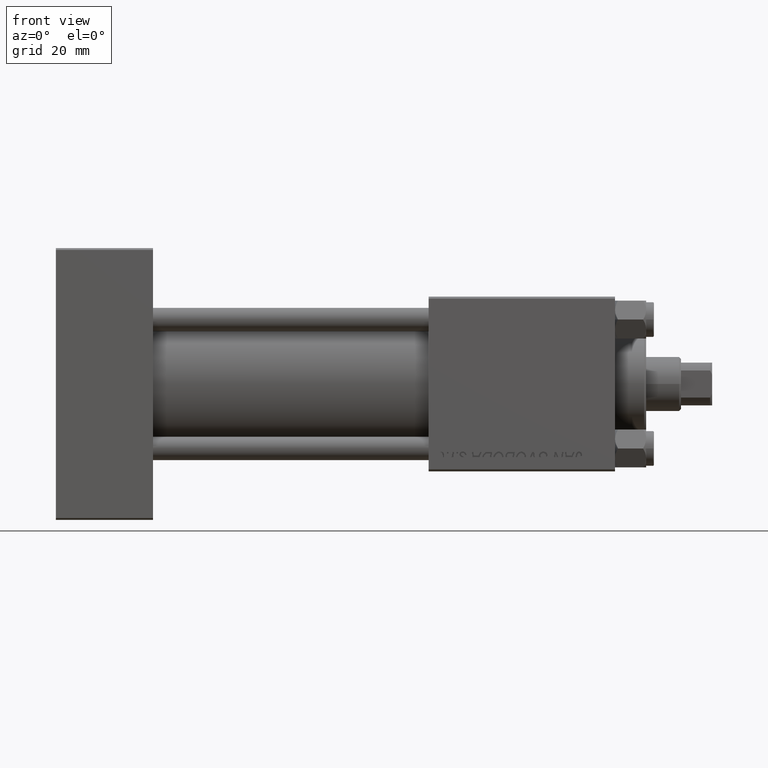
[diagram: clean part render]
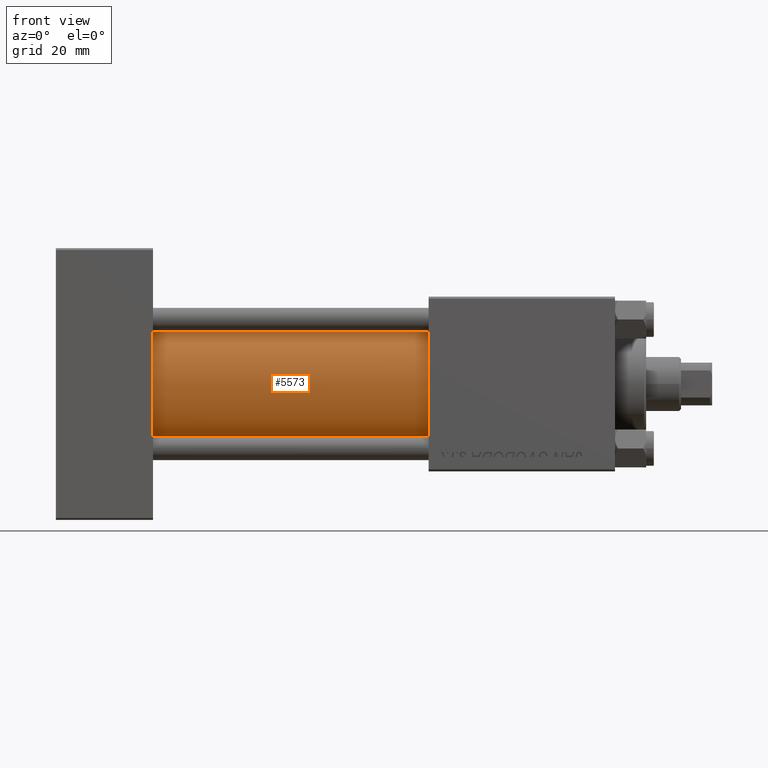
[diagram: same view with one face highlighted and labeled with its STEP entity id]
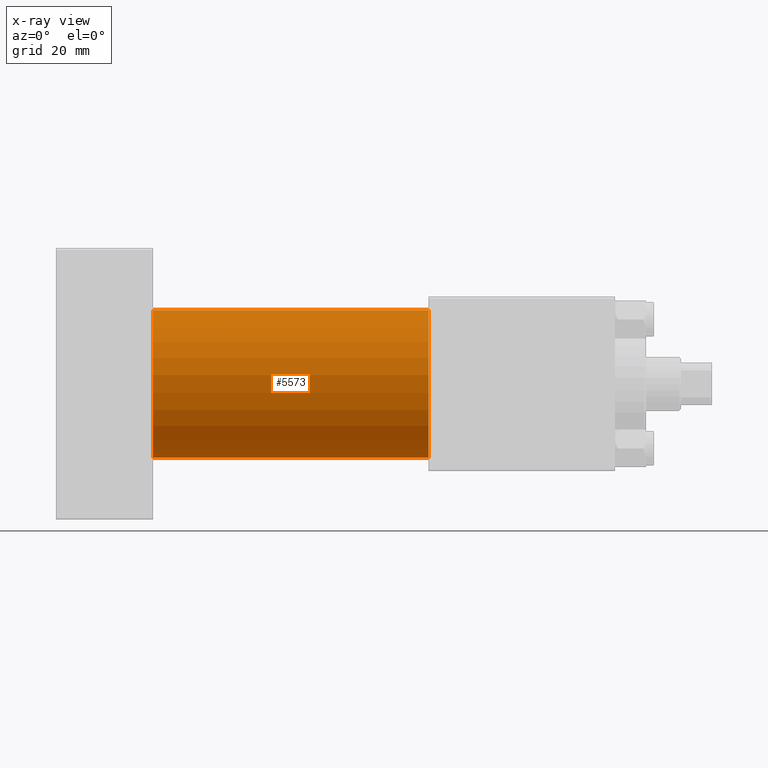
[diagram: x-ray of the same camera — body ghosted, the highlighted face saturated]
A machine part, front view. The second image highlights one B-rep face of the part: STEP entity #5573.
The next image is the same camera in x-ray: the body ghosted, the highlighted face saturated — about 0% of this face is hidden behind the body in this view.
In plain terms, the highlighted cylindrical surface (partial cylindrical patch) has radius 19 mm, axis along (-1, -0, -0).
Its self-contained STEP definition (entity closure, byte-faithful):
#318 = CARTESIAN_POINT ( 'NONE',  ( 24.99999999999999289, -2.602085213965210642E-15, 19.00000000000000000 ) ) ;
#510 = VERTEX_POINT ( 'NONE', #45324 ) ;
#678 = ORIENTED_EDGE ( 'NONE', *, *, #12269, .T. ) ;
#1583 = DIRECTION ( 'NONE',  ( 0.000000000000000000, 0.000000000000000000, 1.000000000000000000 ) ) ;
#4349 = AXIS2_PLACEMENT_3D ( 'NONE', #42202, #38642, #46250 ) ;
#5261 = ORIENTED_EDGE ( 'NONE', *, *, #17061, .T. ) ;
#5389 = DIRECTION ( 'NONE',  ( -1.000000000000000000, -0.000000000000000000, -0.000000000000000000 ) ) ;
#5573 = ADVANCED_FACE ( 'NONE', ( #8936 ), #47828, .T. ) ;
#6076 = CARTESIAN_POINT ( 'NONE',  ( 96.00000000000000000, -2.752562955852396712E-16, -19.00000000000000000 ) ) ;
#8936 = FACE_OUTER_BOUND ( 'NONE', #11137, .T. ) ;
#9864 = LINE ( 'NONE', #6076, #27419 ) ;
#10685 = CIRCLE ( 'NONE', #31656, 19.00000000000000000 ) ;
#11137 = EDGE_LOOP ( 'NONE', ( #33021, #29736, #5261, #678 ) ) ;
#12269 = EDGE_CURVE ( 'NONE', #39663, #510, #10685, .T. ) ;
#13483 = DIRECTION ( 'NONE',  ( 0.000000000000000000, 0.000000000000000000, 1.000000000000000000 ) ) ;
#16008 = VERTEX_POINT ( 'NONE', #40563 ) ;
#17061 = EDGE_CURVE ( 'NONE', #19981, #39663, #42564, .T. ) ;
#19981 = VERTEX_POINT ( 'NONE', #38417 ) ;
#21481 = DIRECTION ( 'NONE',  ( -1.000000000000000000, -0.000000000000000000, -0.000000000000000000 ) ) ;
#23359 = CARTESIAN_POINT ( 'NONE',  ( 96.00000000000000000, -2.602085213965210642E-15, 19.00000000000000000 ) ) ;
#26944 = CIRCLE ( 'NONE', #4349, 19.00000000000000000 ) ;
#27419 = VECTOR ( 'NONE', #21481, 1000.000000000000000 ) ;
#27743 = EDGE_CURVE ( 'NONE', #16008, #510, #9864, .T. ) ;
#29304 = VECTOR ( 'NONE', #47106, 1000.000000000000000 ) ;
#29736 = ORIENTED_EDGE ( 'NONE', *, *, #40016, .F. ) ;
#31656 = AXIS2_PLACEMENT_3D ( 'NONE', #39993, #48088, #13483 ) ;
#33021 = ORIENTED_EDGE ( 'NONE', *, *, #27743, .F. ) ;
#38417 = CARTESIAN_POINT ( 'NONE',  ( 96.00000000000000000, -2.602085213965210642E-15, 19.00000000000000000 ) ) ;
#38642 = DIRECTION ( 'NONE',  ( 1.000000000000000000, 0.000000000000000000, 0.000000000000000000 ) ) ;
#39663 = VERTEX_POINT ( 'NONE', #318 ) ;
#39739 = CARTESIAN_POINT ( 'NONE',  ( 96.00000000000000000, -2.602085213965210642E-15, 0.000000000000000000 ) ) ;
#39993 = CARTESIAN_POINT ( 'NONE',  ( 24.99999999999999289, -2.602085213965210642E-15, 0.000000000000000000 ) ) ;
#40016 = EDGE_CURVE ( 'NONE', #19981, #16008, #26944, .T. ) ;
#40563 = CARTESIAN_POINT ( 'NONE',  ( 96.00000000000000000, -2.752562955852396712E-16, -19.00000000000000000 ) ) ;
#42202 = CARTESIAN_POINT ( 'NONE',  ( 96.00000000000000000, -2.602085213965210642E-15, 0.000000000000000000 ) ) ;
#42564 = LINE ( 'NONE', #23359, #29304 ) ;
#45324 = CARTESIAN_POINT ( 'NONE',  ( 24.99999999999999289, -2.752562955852396712E-16, -19.00000000000000000 ) ) ;
#46250 = DIRECTION ( 'NONE',  ( 0.000000000000000000, 0.000000000000000000, -1.000000000000000000 ) ) ;
#47106 = DIRECTION ( 'NONE',  ( -1.000000000000000000, -0.000000000000000000, -0.000000000000000000 ) ) ;
#47828 = CYLINDRICAL_SURFACE ( 'NONE', #48407, 19.00000000000000000 ) ;
#48088 = DIRECTION ( 'NONE',  ( 1.000000000000000000, -0.000000000000000000, 0.000000000000000000 ) ) ;
#48407 = AXIS2_PLACEMENT_3D ( 'NONE', #39739, #5389, #1583 ) ;